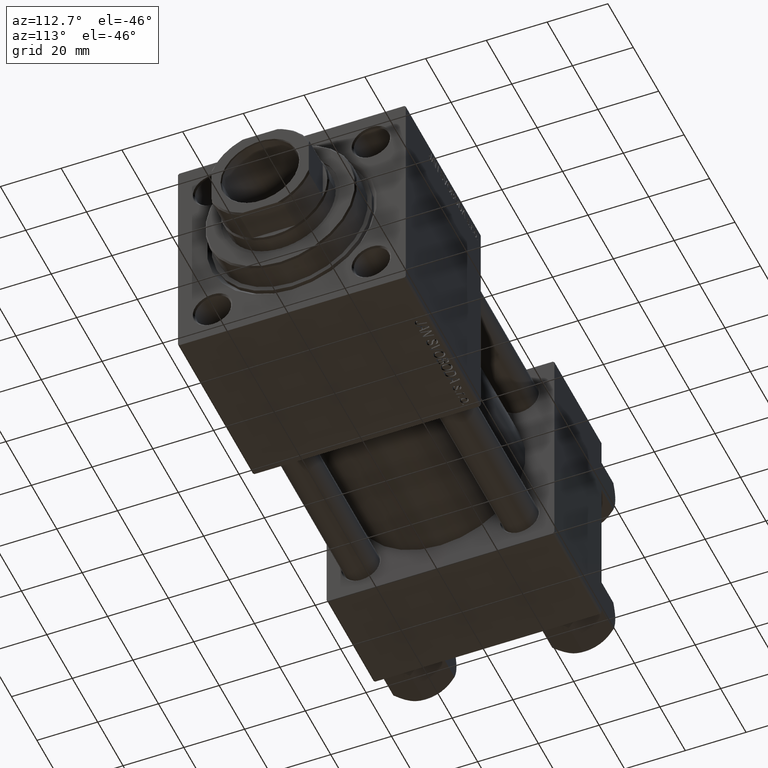
[diagram: clean part render]
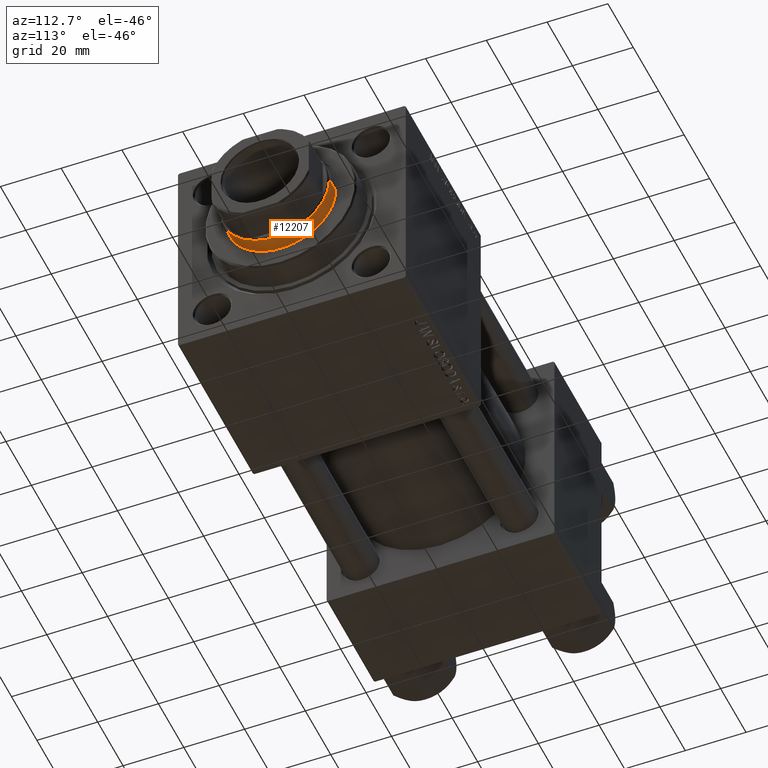
[diagram: same view with one face highlighted and labeled with its STEP entity id]
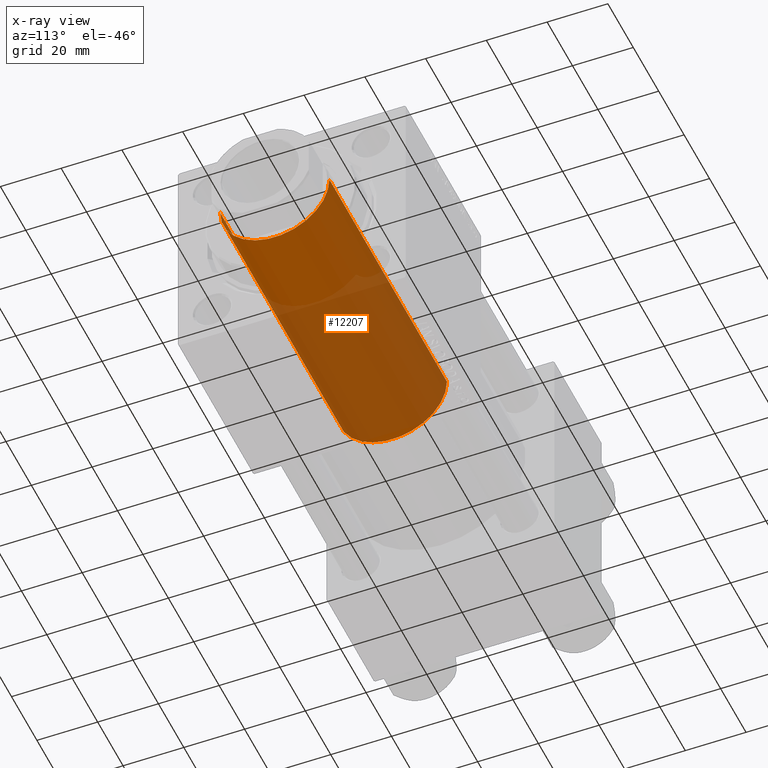
[diagram: x-ray of the same camera — body ghosted, the highlighted face saturated]
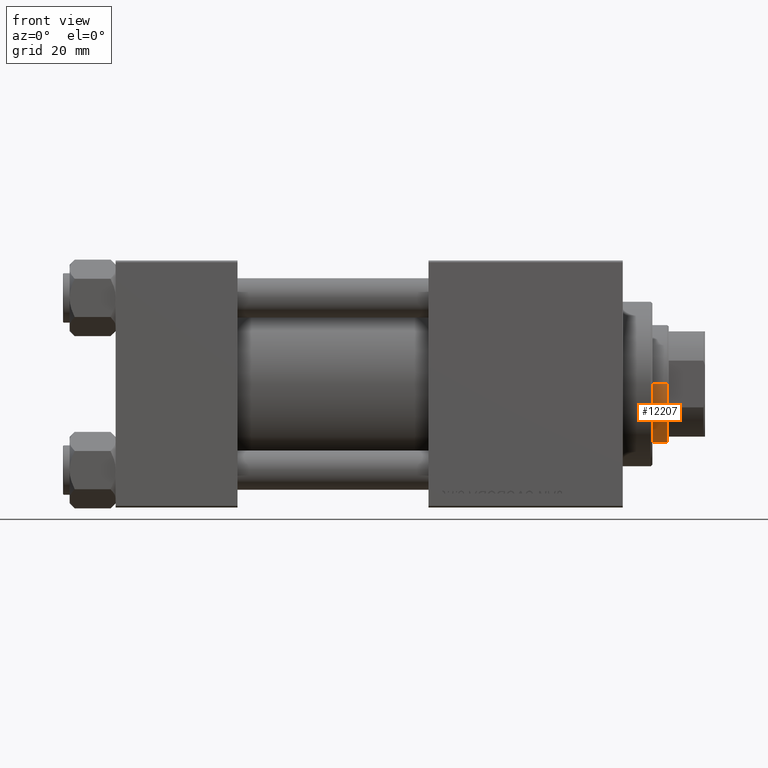
[diagram: same view with one face highlighted and labeled with its STEP entity id]
A machine part, auxiliary view. The second image highlights one B-rep face of the part: STEP entity #12207.
The next image is the same camera in x-ray: the body ghosted, the highlighted face saturated — about 65% of this face is hidden behind the body in this view.
A second angle (front view) of the same face is appended — the face is thin or edge-on in the first view.
In plain terms, the highlighted cylindrical surface (partial cylindrical patch) has radius 18 mm, axis along (-1, 0, 0).
Its self-contained STEP definition (entity closure, byte-faithful):
#134 = DIRECTION ( 'NONE',  ( 0.000000000000000000, 0.000000000000000000, -1.000000000000000000 ) ) ;
#4108 = ORIENTED_EDGE ( 'NONE', *, *, #43381, .T. ) ;
#4742 = DIRECTION ( 'NONE',  ( -0.000000000000000000, -0.000000000000000000, -1.000000000000000000 ) ) ;
#6301 = EDGE_CURVE ( 'NONE', #17005, #19197, #48351, .T. ) ;
#6580 = EDGE_LOOP ( 'NONE', ( #4108, #25914, #47605, #40171 ) ) ;
#7541 = VERTEX_POINT ( 'NONE', #27033 ) ;
#8553 = DIRECTION ( 'NONE',  ( -0.000000000000000000, -0.000000000000000000, -1.000000000000000000 ) ) ;
#9328 = CARTESIAN_POINT ( 'NONE',  ( 0.000000000000000000, 0.000000000000000000, 131.0000000000000000 ) ) ;
#11133 = CARTESIAN_POINT ( 'NONE',  ( -18.00000000000000000, 0.000000000000000000, 131.0000000000000000 ) ) ;
#12207 = ADVANCED_FACE ( 'NONE', ( #20243 ), #31903, .T. ) ;
#13605 = CARTESIAN_POINT ( 'NONE',  ( 18.00000000000000000, 2.204364238465235033E-15, 131.0000000000000000 ) ) ;
#13892 = AXIS2_PLACEMENT_3D ( 'NONE', #30610, #49372, #45833 ) ;
#16940 = DIRECTION ( 'NONE',  ( -1.000000000000000000, 0.000000000000000000, 0.000000000000000000 ) ) ;
#17005 = VERTEX_POINT ( 'NONE', #22784 ) ;
#18199 = AXIS2_PLACEMENT_3D ( 'NONE', #9328, #4742, #16940 ) ;
#18829 = CIRCLE ( 'NONE', #22059, 18.00000000000000000 ) ;
#19197 = VERTEX_POINT ( 'NONE', #24062 ) ;
#19614 = VECTOR ( 'NONE', #8553, 1000.000000000000000 ) ;
#20243 = FACE_OUTER_BOUND ( 'NONE', #6580, .T. ) ;
#21819 = EDGE_CURVE ( 'NONE', #22123, #7541, #45886, .T. ) ;
#22059 = AXIS2_PLACEMENT_3D ( 'NONE', #39470, #134, #43024 ) ;
#22123 = VERTEX_POINT ( 'NONE', #35645 ) ;
#22784 = CARTESIAN_POINT ( 'NONE',  ( 18.00000000000000000, 2.204364238465235033E-15, 130.5000000000000568 ) ) ;
#22821 = CIRCLE ( 'NONE', #13892, 18.00000000000000000 ) ;
#24062 = CARTESIAN_POINT ( 'NONE',  ( 18.00000000000000000, 2.204364238465235033E-15, 38.00000000000000000 ) ) ;
#25914 = ORIENTED_EDGE ( 'NONE', *, *, #6301, .T. ) ;
#26615 = DIRECTION ( 'NONE',  ( -0.000000000000000000, -0.000000000000000000, -1.000000000000000000 ) ) ;
#27033 = CARTESIAN_POINT ( 'NONE',  ( -18.00000000000000000, 0.000000000000000000, 38.00000000000000000 ) ) ;
#30610 = CARTESIAN_POINT ( 'NONE',  ( 0.000000000000000000, 0.000000000000000000, 38.00000000000000000 ) ) ;
#31903 = CYLINDRICAL_SURFACE ( 'NONE', #18199, 18.00000000000000000 ) ;
#34605 = VECTOR ( 'NONE', #26615, 1000.000000000000000 ) ;
#35645 = CARTESIAN_POINT ( 'NONE',  ( -18.00000000000000000, 0.000000000000000000, 130.5000000000000568 ) ) ;
#39470 = CARTESIAN_POINT ( 'NONE',  ( 0.000000000000000000, 0.000000000000000000, 130.5000000000000568 ) ) ;
#40171 = ORIENTED_EDGE ( 'NONE', *, *, #21819, .F. ) ;
#40530 = EDGE_CURVE ( 'NONE', #19197, #7541, #22821, .T. ) ;
#43024 = DIRECTION ( 'NONE',  ( 1.000000000000000000, 0.000000000000000000, 0.000000000000000000 ) ) ;
#43381 = EDGE_CURVE ( 'NONE', #22123, #17005, #18829, .T. ) ;
#45833 = DIRECTION ( 'NONE',  ( 1.000000000000000000, 0.000000000000000000, 0.000000000000000000 ) ) ;
#45886 = LINE ( 'NONE', #11133, #34605 ) ;
#47605 = ORIENTED_EDGE ( 'NONE', *, *, #40530, .T. ) ;
#48351 = LINE ( 'NONE', #13605, #19614 ) ;
#49372 = DIRECTION ( 'NONE',  ( 0.000000000000000000, 0.000000000000000000, 1.000000000000000000 ) ) ;